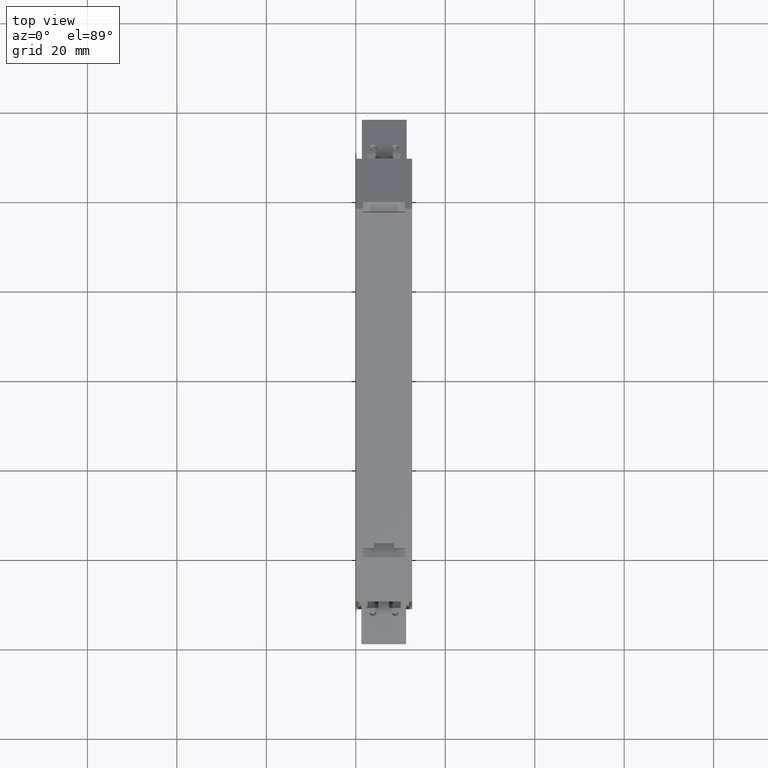
[diagram: clean part render]
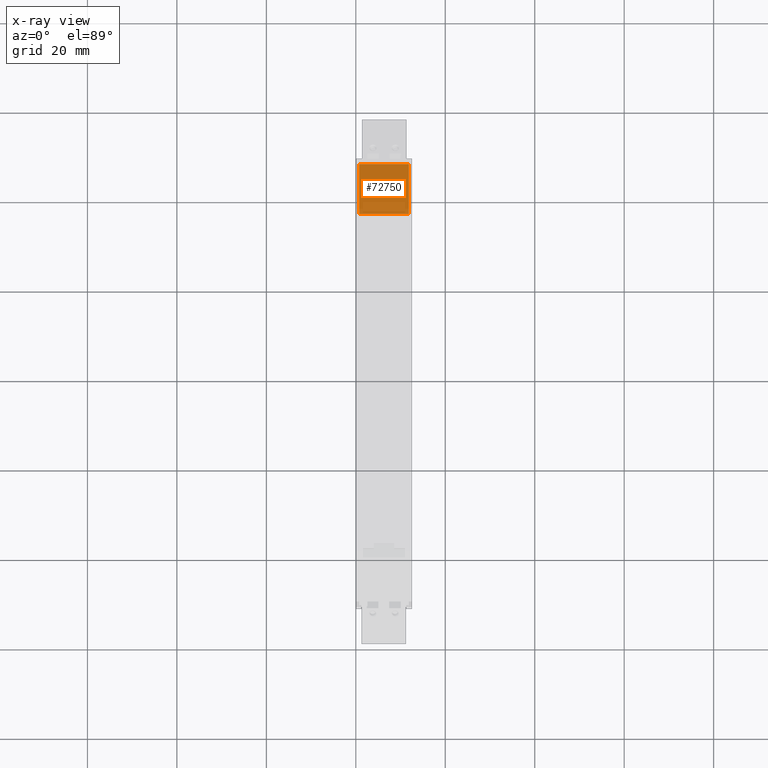
[diagram: x-ray — body ghosted, one internal face saturated and labeled with its STEP entity id]
A machine part, top view, then the same camera in x-ray: the body is ghosted and one INTERNAL B-rep face — a face not visible from any outside direction — is saturated and labeled: STEP entity #72750.
In plain terms, the highlighted planar face has unit normal (-0, 0.5445, 0.8388).
Its self-contained STEP definition (entity closure, byte-faithful):
#10500=CARTESIAN_POINT('',(11.8499992222009,99.0000000002746,
38.3317897318878));
#10510=VERTEX_POINT('',#10500);
#10540=CARTESIAN_POINT('',(8.79999999946697,99.0000000002746,
38.3317897318858));
#10550=DIRECTION('',(1.,-1.44715044762465E-24,6.29396449563815E-13));
#10560=VECTOR('',#10550,1.);
#10570=LINE('',#10540,#10560);
#10580=CARTESIAN_POINT('',(0.749999222530521,99.0000000002746,
38.3317897318808));
#10590=VERTEX_POINT('',#10580);
#10600=EDGE_CURVE('',#10590,#10510,#10570,.T.);
#72450=CARTESIAN_POINT('',(11.3499984449729,97.2556523937319,
39.4640234724604));
#72460=DIRECTION('',(-5.27933520743606E-13,0.544450007854237,
0.838793293337233));
#72470=DIRECTION('',(8.13351775150574E-13,-0.838793293337233,
0.544450007854237));
#72480=AXIS2_PLACEMENT_3D('',#72450,#72460,#72470);
#72490=PLANE('',#72480);
#72500=CARTESIAN_POINT('',(11.8499984450672,0.000184088196412802,
102.59130513222));
#72510=DIRECTION('',(-8.1334938784039E-13,0.838793293337233,
-0.544450007854237));
#72520=VECTOR('',#72510,1.);
#72530=LINE('',#72500,#72520);
#72540=CARTESIAN_POINT('',(11.8499992222119,87.6638861742058,
45.6899163533869));
#72550=VERTEX_POINT('',#72540);
#72560=EDGE_CURVE('',#72550,#10510,#72530,.T.);
#72570=ORIENTED_EDGE('',*,*,#72560,.T.);
#72580=CARTESIAN_POINT('',(-7.77229642423549E-7,87.6638861741943,
45.6899163533869));
#72590=DIRECTION('',(1.,9.69564701079104E-13,6.43920574064982E-17));
#72600=VECTOR('',#72590,1.);
#72610=LINE('',#72580,#72600);
#72620=CARTESIAN_POINT('',(0.74999922254152,87.6638861741951,
45.6899163533869));
#72630=VERTEX_POINT('',#72620);
#72640=EDGE_CURVE('',#72630,#72550,#72610,.T.);
#72650=ORIENTED_EDGE('',*,*,#72640,.T.);
#72660=CARTESIAN_POINT('',(0.749998445396903,0.000184088196412802,
102.591305132213));
#72670=DIRECTION('',(8.13515921294083E-13,-0.838793293337233,
0.544450007854237));
#72680=VECTOR('',#72670,1.);
#72690=LINE('',#72660,#72680);
#72700=EDGE_CURVE('',#10590,#72630,#72690,.T.);
#72710=ORIENTED_EDGE('',*,*,#72700,.T.);
#72720=ORIENTED_EDGE('',*,*,#10600,.F.);
#72730=EDGE_LOOP('',(#72720,#72710,#72650,#72570));
#72740=FACE_OUTER_BOUND('',#72730,.T.);
#72750=ADVANCED_FACE('',(#72740),#72490,.T.);